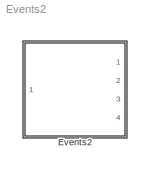
MODEL Events2
KIND model
CONFIG AbsTol = auto
CONFIG FixedStep = auto
CONFIG MaxStep = auto
CONFIG MinStep = auto
CONFIG RelTol = 1e-3
CONFIG Solver = ode45
CONFIG SolverMode = Auto
CONFIG StartTime = 0.0
CONFIG StopTime = 10.0
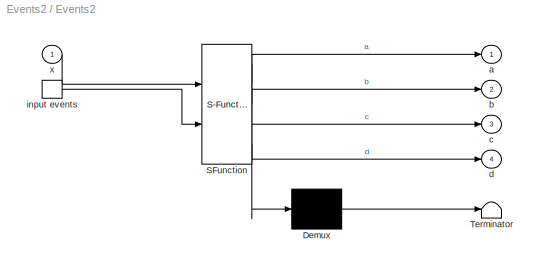
BLOCK [SubSystem] Events2
  MaskDescription = Stateflow diagram
  MaskDisplay = plot(sf('Private','sfblk','xIcon'),sf('Private','sfblk','yIcon'));text(0.5,0,sf('Private', 'sfblk', 'tIcon'),'HorizontalAl','Center','VerticalAl','Bottom');
  MaskIconFrame = off
  MaskIconOpaque = off
  MaskIconRotate = none
  MaskIconUnits = autoscale
  MaskSelfModifiable = on
  MaskType = Stateflow
  Ports = [1, 4, 0, 1]
  TreatAsAtomicUnit = off
BLOCK [Demux] Events2/ Demux 
  Outputs = 1
  Ports = [1, 1]
BLOCK [S-Function] Events2/ SFunction 
  FunctionName = sf_sfun
  PortCounts = [2 5]
  Ports = [2, 5]
  Tag = Stateflow S-Function Events2 1
BLOCK [Terminator] Events2/ Terminator 
BLOCK [TriggerPort] Events2/ input events 
  Ports = [0, 1]
  ShowOutputPort = on
  TriggerType = either
BLOCK [Outport] Events2/a
BLOCK [Outport] Events2/b
  Port = 2
BLOCK [Outport] Events2/c
  Port = 3
BLOCK [Outport] Events2/d
  Port = 4
BLOCK [Inport] Events2/x
  PortDimensions = 1
LINE Events2/ Demux :1 -> Events2/ Terminator :1
LINE Events2/ SFunction :1 -> Events2/ Demux :1
LINE Events2/ SFunction :2 -> Events2/a:1
LINE Events2/ SFunction :3 -> Events2/b:1
LINE Events2/ SFunction :4 -> Events2/c:1
LINE Events2/ SFunction :5 -> Events2/d:1
LINE Events2/ input events :1 -> Events2/ SFunction :2
LINE Events2/x:1 -> Events2/ SFunction :1
CHART Events2 states=12 transitions=12
  STATE_LABEL 'Cb/\\nen:c=x+6'
  STATE_LABEL 'B'
  STATE_LABEL 'Ba/\\nen:b=x+3'
  STATE_LABEL 'Bb/\\nen:b=x+4'
  STATE_LABEL 'A'
  STATE_LABEL 'Aa/\\nen:a=x+1'
  STATE_LABEL 'Ab/\\nen:a=x+2'
  STATE_LABEL 'Ca/\\nen:c=x+5'
  STATE_LABEL 'D'
  STATE_LABEL 'Da/\\nen:d=x+7'
  STATE_LABEL 'Db/\\nen:d=x+8'
  STATE_LABEL 'C'
